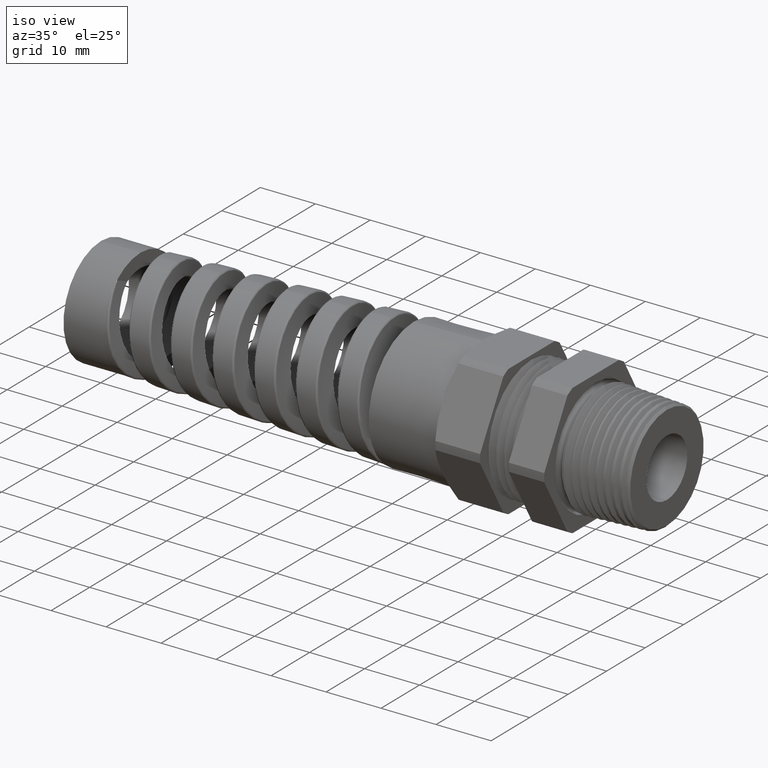
[diagram: clean part render]
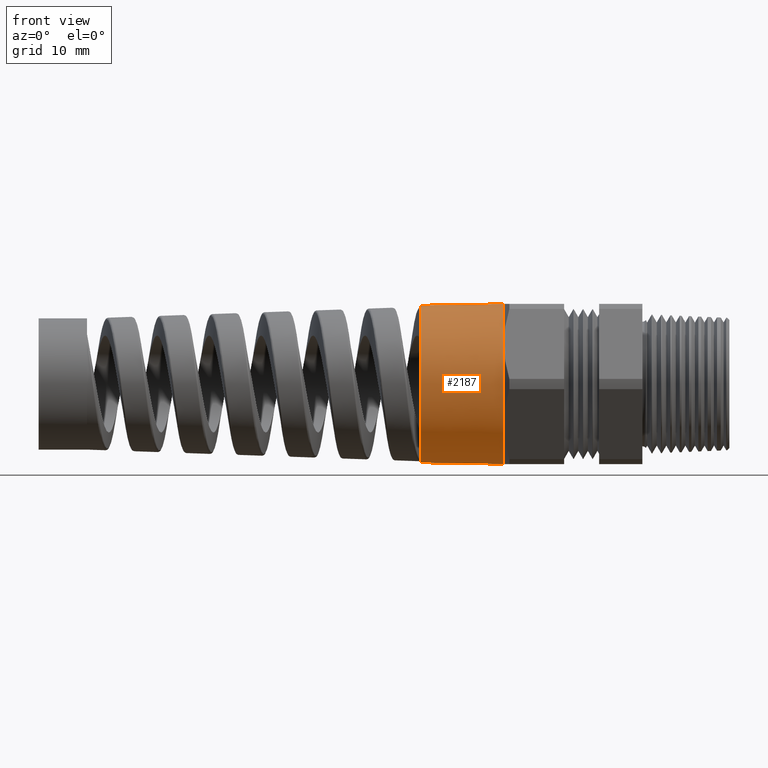
[diagram: tour spotlight — one face highlighted and labeled with its STEP entity id]
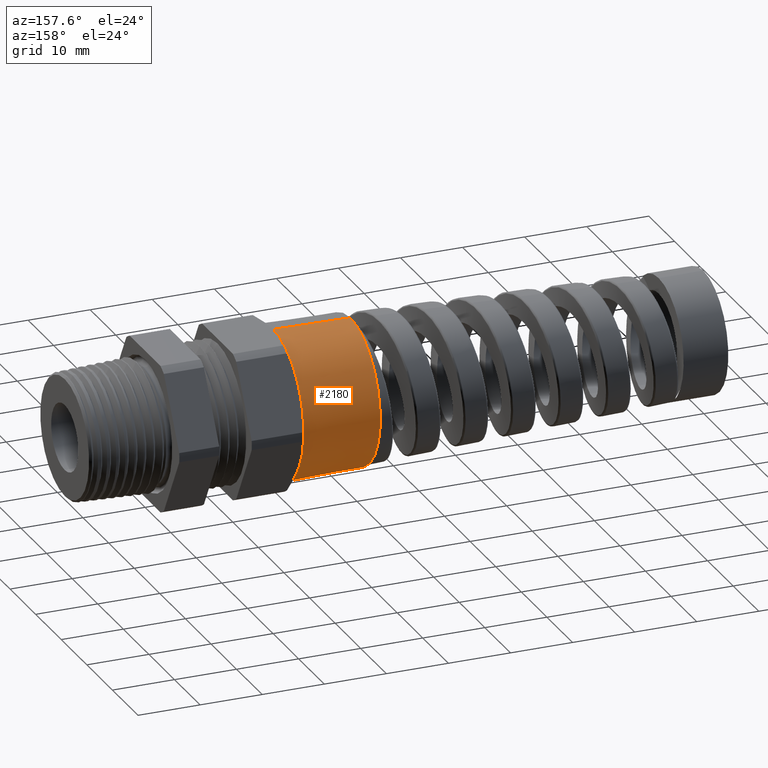
[diagram: tour spotlight — one face highlighted and labeled with its STEP entity id]
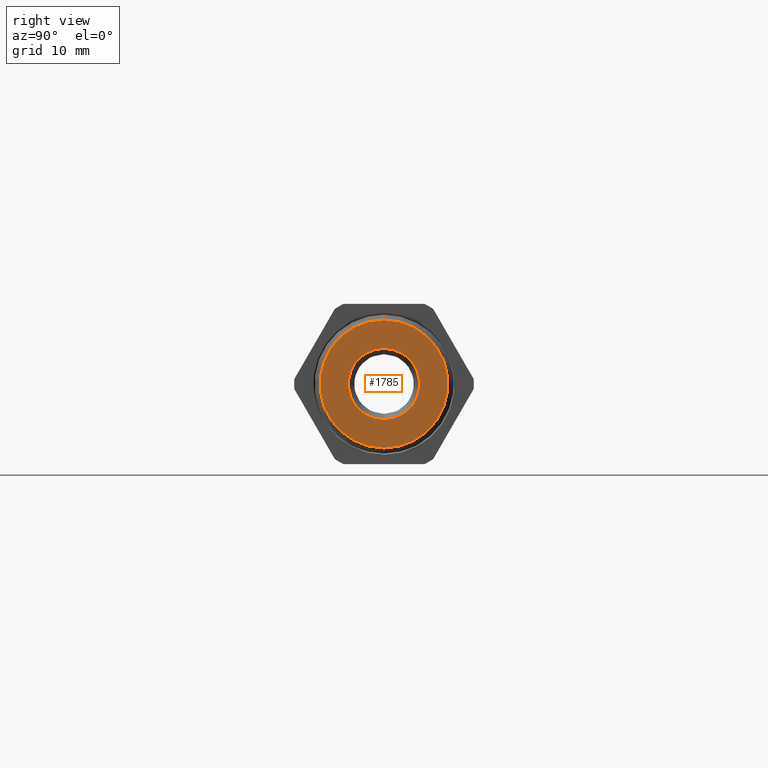
[diagram: tour spotlight — one face highlighted and labeled with its STEP entity id]
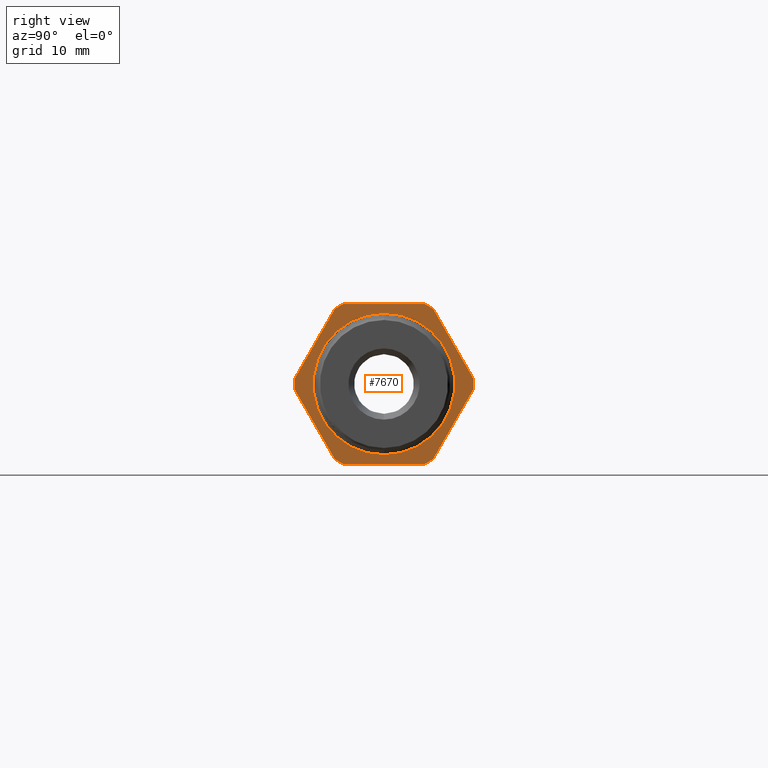
[diagram: tour spotlight — one face highlighted and labeled with its STEP entity id]
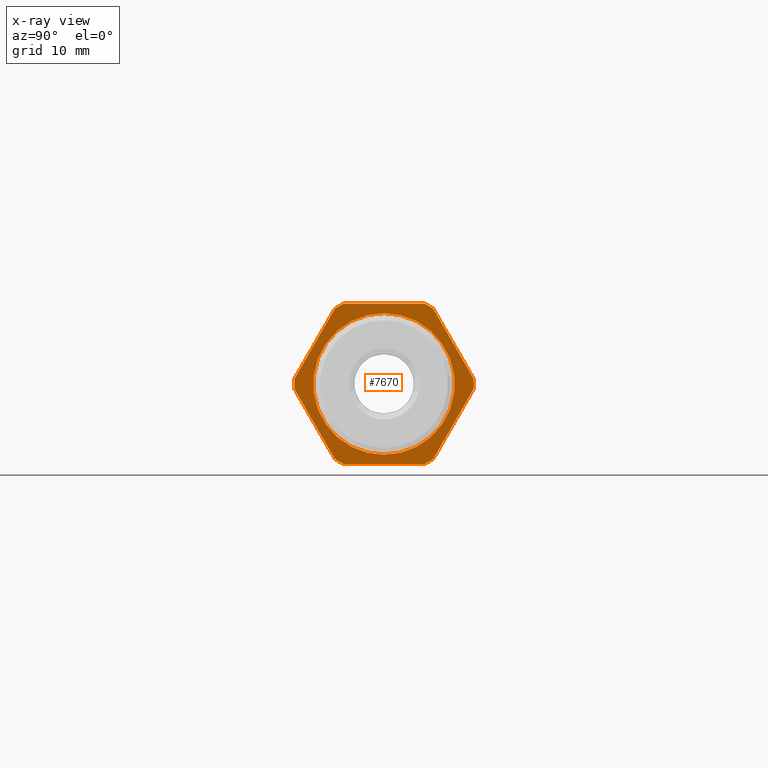
[diagram: x-ray of the same camera — body ghosted, this tour face saturated]
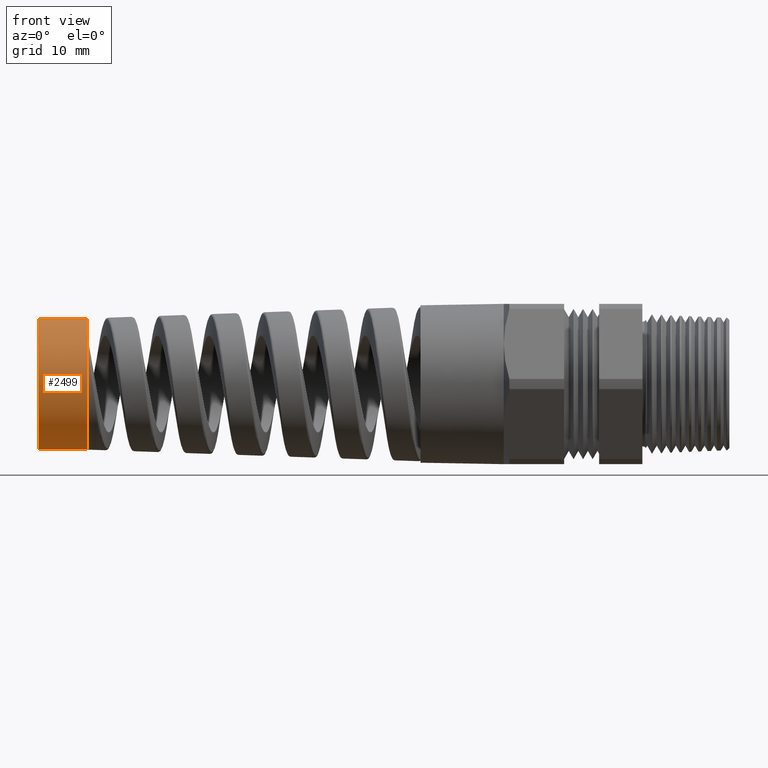
[diagram: tour spotlight — one face highlighted and labeled with its STEP entity id]
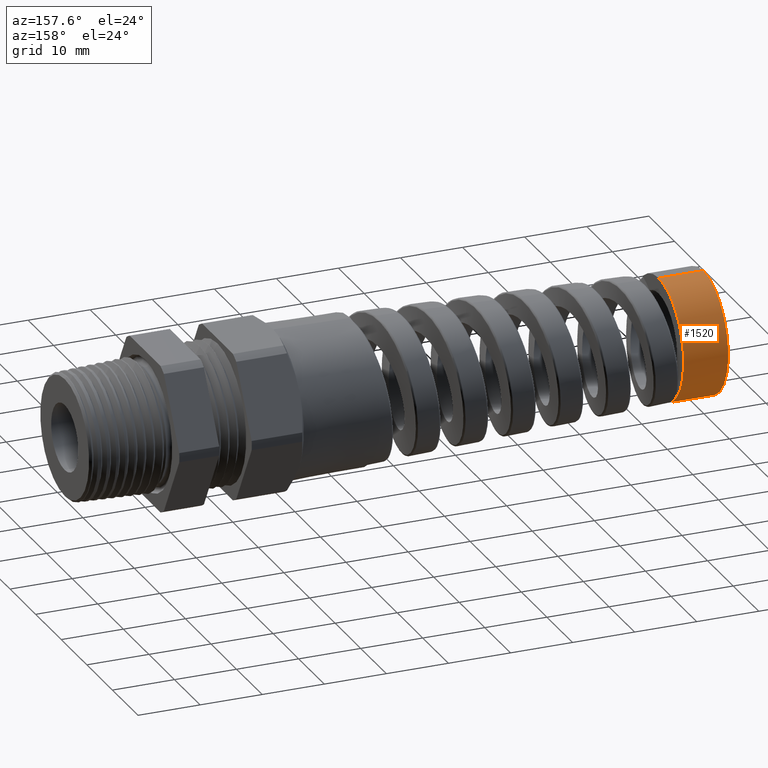
[diagram: tour spotlight — one face highlighted and labeled with its STEP entity id]
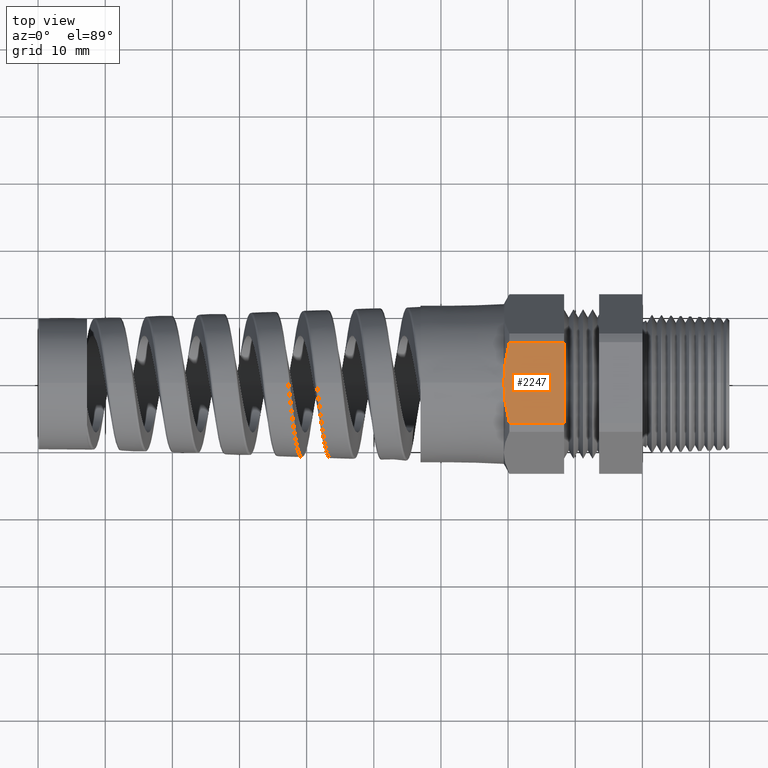
[diagram: tour spotlight — one face highlighted and labeled with its STEP entity id]
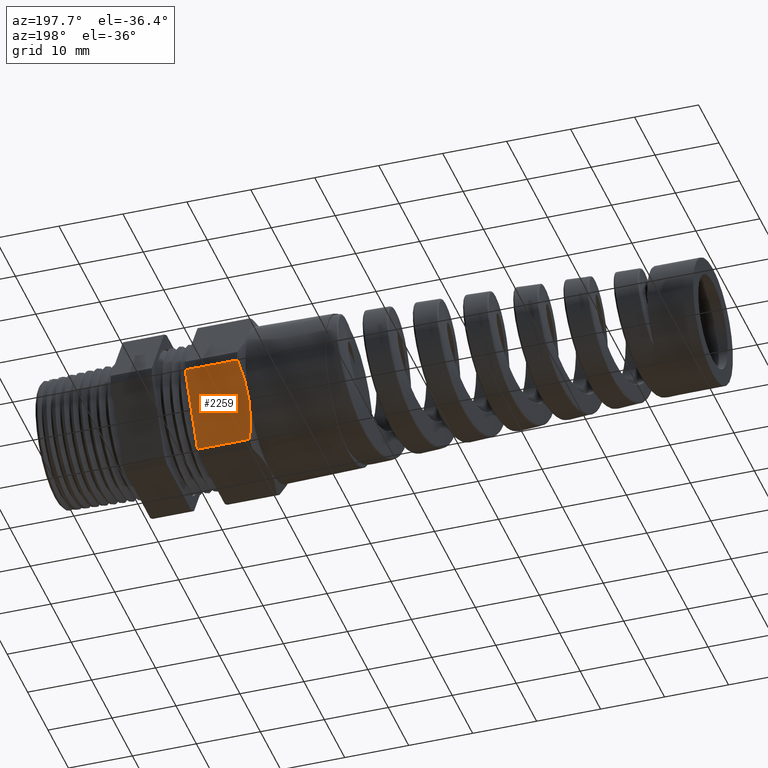
[diagram: tour spotlight — one face highlighted and labeled with its STEP entity id]
A machine part: a face-by-face anatomy tour. The part has 164 B-rep faces; the first image is the clean iso view, then the 8 largest visible faces are spotlighted one at a time (largest first), each with its STEP entity span.

Face 1 — front view, entity #2187. In plain terms, the highlighted conical surface has half-angle 1 deg.
Definition (entity closure, byte-faithful):
#968 = DIRECTION ( 'NONE',  ( 0.0000000000000000000, 0.0000000000000000000, 1.000000000000000000 ) ) ;
#1939 = VERTEX_POINT ( 'NONE', #9946 ) ;
#1942 = EDGE_CURVE ( 'NONE', #1961, #1939, #9941, .T. ) ;
#1943 = ORIENTED_EDGE ( 'NONE', *, *, #1942, .T. ) ;
#1961 = VERTEX_POINT ( 'NONE', #9928 ) ;
#1973 = ORIENTED_EDGE ( 'NONE', *, *, #1989, .T. ) ;
#1975 = VERTEX_POINT ( 'NONE', #9992 ) ;
#1989 = EDGE_CURVE ( 'NONE', #1975, #1961, #9984, .T. ) ;
#2127 = EDGE_CURVE ( 'NONE', #2198, #1975, #10019, .T. ) ;
#2131 = ORIENTED_EDGE ( 'NONE', *, *, #2127, .T. ) ;
#2178 = VERTEX_POINT ( 'NONE', #10227 ) ;
#2179 = ORIENTED_EDGE ( 'NONE', *, *, #2181, .F. ) ;
#2181 = EDGE_CURVE ( 'NONE', #2196, #2178, #10246, .T. ) ;
#2184 = EDGE_CURVE ( 'NONE', #1939, #2178, #10238, .T. ) ;
#2185 = EDGE_CURVE ( 'NONE', #2198, #2196, #10300, .T. ) ;
#2187 = ADVANCED_FACE ( 'NONE', ( #10293 ), #10292, .T. ) ;
#2194 = ORIENTED_EDGE ( 'NONE', *, *, #2185, .F. ) ;
#2195 = ORIENTED_EDGE ( 'NONE', *, *, #2184, .T. ) ;
#2196 = VERTEX_POINT ( 'NONE', #10264 ) ;
#2197 = EDGE_LOOP ( 'NONE', ( #2194, #2131, #1973, #1943, #2195, #2179 ) ) ;
#2198 = VERTEX_POINT ( 'NONE', #10263 ) ;
#9928 = CARTESIAN_POINT ( 'NONE',  ( -0.8125000000000001100, -0.4070319397786860100, -0.2350000000000000100 ) ) ;
#9937 = DIRECTION ( 'NONE',  ( 0.0000000000000000000, 0.0000000000000000000, 1.000000000000000000 ) ) ;
#9938 = DIRECTION ( 'NONE',  ( -1.000000000000000000, 0.0000000000000000000, 0.0000000000000000000 ) ) ;
#9939 = CARTESIAN_POINT ( 'NONE',  ( -0.8125000000000000000, 0.0000000000000000000, 0.0000000000000000000 ) ) ;
#9940 = AXIS2_PLACEMENT_3D ( 'NONE', #9939, #9938, #9937 ) ;
#9941 = CIRCLE ( 'NONE', #9940, 0.4699999999999997000 ) ;
#9946 = CARTESIAN_POINT ( 'NONE',  ( -0.8125000000000000000, -0.4070319397786860100, 0.2349999999999999600 ) ) ;
#9980 = DIRECTION ( 'NONE',  ( 0.0000000000000000000, 0.0000000000000000000, 1.000000000000000000 ) ) ;
#9981 = DIRECTION ( 'NONE',  ( -1.000000000000000000, 0.0000000000000000000, 0.0000000000000000000 ) ) ;
#9982 = CARTESIAN_POINT ( 'NONE',  ( -0.8125000000000000000, 0.0000000000000000000, 0.0000000000000000000 ) ) ;
#9983 = AXIS2_PLACEMENT_3D ( 'NONE', #9982, #9981, #9980 ) ;
#9984 = CIRCLE ( 'NONE', #9983, 0.4699999999999997000 ) ;
#9992 = CARTESIAN_POINT ( 'NONE',  ( -0.8125000000000000000, 0.0000000000000000000, -0.4699999999999999200 ) ) ;
#10012 = DIRECTION ( 'NONE',  ( 0.9998476951563912700, -2.137303368083796300E-018, -0.01745240643728355000 ) ) ;
#10013 = VECTOR ( 'NONE', #10012, 39.37007874015748100 ) ;
#10014 = CARTESIAN_POINT ( 'NONE',  ( -0.8125000000000000000, -5.755839955992557200E-017, -0.4699999999999997500 ) ) ;
#10019 = LINE ( 'NONE', #10014, #10013 ) ;
#10227 = CARTESIAN_POINT ( 'NONE',  ( -0.8125000000000001100, 0.0000000000000000000, 0.4699999999999997000 ) ) ;
#10236 = DIRECTION ( 'NONE',  ( -1.000000000000000000, 0.0000000000000000000, 0.0000000000000000000 ) ) ;
#10237 = AXIS2_PLACEMENT_3D ( 'NONE', #10241, #10236, #968 ) ;
#10238 = CIRCLE ( 'NONE', #10237, 0.4699999999999997000 ) ;
#10241 = CARTESIAN_POINT ( 'NONE',  ( -0.8125000000000000000, 0.0000000000000000000, 0.0000000000000000000 ) ) ;
#10243 = DIRECTION ( 'NONE',  ( 0.9998476951563912700, 0.0000000000000000000, 0.01745240643728355000 ) ) ;
#10244 = VECTOR ( 'NONE', #10243, 39.37007874015748100 ) ;
#10245 = CARTESIAN_POINT ( 'NONE',  ( -0.8125000000000000000, 0.0000000000000000000, 0.4699999999999997500 ) ) ;
#10246 = LINE ( 'NONE', #10245, #10244 ) ;
#10263 = CARTESIAN_POINT ( 'NONE',  ( -1.301020000000000100, -5.703626231520601100E-017, -0.4614728516812668400 ) ) ;
#10264 = CARTESIAN_POINT ( 'NONE',  ( -1.301020000000000100, 0.0000000000000000000, 0.4614728516812668400 ) ) ;
#10287 = DIRECTION ( 'NONE',  ( 0.0000000000000000000, 0.0000000000000000000, 1.000000000000000000 ) ) ;
#10288 = DIRECTION ( 'NONE',  ( 1.000000000000000000, 0.0000000000000000000, 0.0000000000000000000 ) ) ;
#10289 = CARTESIAN_POINT ( 'NONE',  ( -0.8125000000000000000, 0.0000000000000000000, 0.0000000000000000000 ) ) ;
#10290 = AXIS2_PLACEMENT_3D ( 'NONE', #10289, #10288, #10287 ) ;
#10292 = CONICAL_SURFACE ( 'NONE', #10290, 0.4699999999999997500, 0.01745329251994333400 ) ;
#10293 = FACE_OUTER_BOUND ( 'NONE', #2197, .T. ) ;
#10294 = DIRECTION ( 'NONE',  ( 0.0000000000000000000, 0.0000000000000000000, 1.000000000000000000 ) ) ;
#10295 = DIRECTION ( 'NONE',  ( -1.000000000000000000, 0.0000000000000000000, 0.0000000000000000000 ) ) ;
#10296 = CARTESIAN_POINT ( 'NONE',  ( -1.301020000000000100, 0.0000000000000000000, 0.0000000000000000000 ) ) ;
#10297 = AXIS2_PLACEMENT_3D ( 'NONE', #10296, #10295, #10294 ) ;
#10300 = CIRCLE ( 'NONE', #10297, 0.4614728516812668400 ) ;

Face 2 — auxiliary view, entity #2180. In plain terms, the highlighted conical surface has half-angle 1 deg.
Definition (entity closure, byte-faithful):
#430 = EDGE_CURVE ( 'NONE', #1031, #2243, #7956, .T. ) ;
#447 = EDGE_CURVE ( 'NONE', #2178, #1031, #7983, .T. ) ;
#1031 = VERTEX_POINT ( 'NONE', #8383 ) ;
#1949 = ORIENTED_EDGE ( 'NONE', *, *, #2136, .T. ) ;
#1950 = ORIENTED_EDGE ( 'NONE', *, *, #430, .T. ) ;
#1951 = ORIENTED_EDGE ( 'NONE', *, *, #447, .T. ) ;
#1952 = ORIENTED_EDGE ( 'NONE', *, *, #2181, .T. ) ;
#1953 = ORIENTED_EDGE ( 'NONE', *, *, #12428, .F. ) ;
#1955 = ORIENTED_EDGE ( 'NONE', *, *, #2127, .F. ) ;
#1957 = EDGE_LOOP ( 'NONE', ( #1955, #1953, #1952, #1951, #1950, #1949 ) ) ;
#1975 = VERTEX_POINT ( 'NONE', #9992 ) ;
#2127 = EDGE_CURVE ( 'NONE', #2198, #1975, #10019, .T. ) ;
#2136 = EDGE_CURVE ( 'NONE', #2243, #1975, #10097, .T. ) ;
#2178 = VERTEX_POINT ( 'NONE', #10227 ) ;
#2180 = ADVANCED_FACE ( 'NONE', ( #10252 ), #10250, .T. ) ;
#2181 = EDGE_CURVE ( 'NONE', #2196, #2178, #10246, .T. ) ;
#2196 = VERTEX_POINT ( 'NONE', #10264 ) ;
#2198 = VERTEX_POINT ( 'NONE', #10263 ) ;
#2243 = VERTEX_POINT ( 'NONE', #10599 ) ;
#6944 = DIRECTION ( 'NONE',  ( 0.0000000000000000000, 0.0000000000000000000, 1.000000000000000000 ) ) ;
#6945 = DIRECTION ( 'NONE',  ( -1.000000000000000000, 0.0000000000000000000, 0.0000000000000000000 ) ) ;
#6946 = CARTESIAN_POINT ( 'NONE',  ( -1.301020000000000100, 0.0000000000000000000, 0.0000000000000000000 ) ) ;
#6947 = AXIS2_PLACEMENT_3D ( 'NONE', #6946, #6945, #6944 ) ;
#6948 = CIRCLE ( 'NONE', #6947, 0.4614728516812668400 ) ;
#7953 = DIRECTION ( 'NONE',  ( 0.0000000000000000000, 0.0000000000000000000, 1.000000000000000000 ) ) ;
#7954 = DIRECTION ( 'NONE',  ( -1.000000000000000000, 0.0000000000000000000, 0.0000000000000000000 ) ) ;
#7955 = AXIS2_PLACEMENT_3D ( 'NONE', #7961, #7954, #7953 ) ;
#7956 = CIRCLE ( 'NONE', #7955, 0.4699999999999997000 ) ;
#7961 = CARTESIAN_POINT ( 'NONE',  ( -0.8125000000000000000, 0.0000000000000000000, 0.0000000000000000000 ) ) ;
#7980 = DIRECTION ( 'NONE',  ( 0.0000000000000000000, 0.0000000000000000000, 1.000000000000000000 ) ) ;
#7981 = DIRECTION ( 'NONE',  ( -1.000000000000000000, 0.0000000000000000000, 0.0000000000000000000 ) ) ;
#7982 = AXIS2_PLACEMENT_3D ( 'NONE', #7989, #7981, #7980 ) ;
#7983 = CIRCLE ( 'NONE', #7982, 0.4699999999999997000 ) ;
#7989 = CARTESIAN_POINT ( 'NONE',  ( -0.8125000000000000000, 0.0000000000000000000, 0.0000000000000000000 ) ) ;
#8383 = CARTESIAN_POINT ( 'NONE',  ( -0.8125000000000000000, 0.4070319397786859000, 0.2349999999999999600 ) ) ;
#9992 = CARTESIAN_POINT ( 'NONE',  ( -0.8125000000000000000, 0.0000000000000000000, -0.4699999999999999200 ) ) ;
#10012 = DIRECTION ( 'NONE',  ( 0.9998476951563912700, -2.137303368083796300E-018, -0.01745240643728355000 ) ) ;
#10013 = VECTOR ( 'NONE', #10012, 39.37007874015748100 ) ;
#10014 = CARTESIAN_POINT ( 'NONE',  ( -0.8125000000000000000, -5.755839955992557200E-017, -0.4699999999999997500 ) ) ;
#10019 = LINE ( 'NONE', #10014, #10013 ) ;
#10093 = DIRECTION ( 'NONE',  ( 0.0000000000000000000, 0.0000000000000000000, 1.000000000000000000 ) ) ;
#10094 = DIRECTION ( 'NONE',  ( -1.000000000000000000, 0.0000000000000000000, 0.0000000000000000000 ) ) ;
#10095 = CARTESIAN_POINT ( 'NONE',  ( -0.8125000000000000000, 0.0000000000000000000, 0.0000000000000000000 ) ) ;
#10096 = AXIS2_PLACEMENT_3D ( 'NONE', #10095, #10094, #10093 ) ;
#10097 = CIRCLE ( 'NONE', #10096, 0.4699999999999997000 ) ;
#10227 = CARTESIAN_POINT ( 'NONE',  ( -0.8125000000000001100, 0.0000000000000000000, 0.4699999999999997000 ) ) ;
#10243 = DIRECTION ( 'NONE',  ( 0.9998476951563912700, 0.0000000000000000000, 0.01745240643728355000 ) ) ;
#10244 = VECTOR ( 'NONE', #10243, 39.37007874015748100 ) ;
#10245 = CARTESIAN_POINT ( 'NONE',  ( -0.8125000000000000000, 0.0000000000000000000, 0.4699999999999997500 ) ) ;
#10246 = LINE ( 'NONE', #10245, #10244 ) ;
#10247 = DIRECTION ( 'NONE',  ( 0.0000000000000000000, 0.0000000000000000000, 1.000000000000000000 ) ) ;
#10248 = DIRECTION ( 'NONE',  ( 1.000000000000000000, 0.0000000000000000000, 0.0000000000000000000 ) ) ;
#10249 = AXIS2_PLACEMENT_3D ( 'NONE', #10251, #10248, #10247 ) ;
#10250 = CONICAL_SURFACE ( 'NONE', #10249, 0.4699999999999997500, 0.01745329251994333400 ) ;
#10251 = CARTESIAN_POINT ( 'NONE',  ( -0.8125000000000000000, 0.0000000000000000000, 0.0000000000000000000 ) ) ;
#10252 = FACE_OUTER_BOUND ( 'NONE', #1957, .T. ) ;
#10263 = CARTESIAN_POINT ( 'NONE',  ( -1.301020000000000100, -5.703626231520601100E-017, -0.4614728516812668400 ) ) ;
#10264 = CARTESIAN_POINT ( 'NONE',  ( -1.301020000000000100, 0.0000000000000000000, 0.4614728516812668400 ) ) ;
#10599 = CARTESIAN_POINT ( 'NONE',  ( -0.8125000000000000000, 0.4070319397786862400, -0.2350000000000001000 ) ) ;
#12428 = EDGE_CURVE ( 'NONE', #2196, #2198, #6948, .T. ) ;

Face 3 — right view, entity #1785. In plain terms, the highlighted planar face has unit normal (-1, 0, 0).
Definition (entity closure, byte-faithful):
#1253 = VERTEX_POINT ( 'NONE', #8768 ) ;
#1254 = VERTEX_POINT ( 'NONE', #8767 ) ;
#1300 = EDGE_CURVE ( 'NONE', #1253, #1254, #9074, .T. ) ;
#1544 = VERTEX_POINT ( 'NONE', #9458 ) ;
#1546 = VERTEX_POINT ( 'NONE', #9457 ) ;
#1547 = EDGE_CURVE ( 'NONE', #1544, #1546, #9491, .T. ) ;
#1767 = ORIENTED_EDGE ( 'NONE', *, *, #1300, .T. ) ;
#1769 = EDGE_CURVE ( 'NONE', #1254, #1253, #9714, .T. ) ;
#1776 = EDGE_LOOP ( 'NONE', ( #1767, #1777 ) ) ;
#1777 = ORIENTED_EDGE ( 'NONE', *, *, #1769, .T. ) ;
#1779 = ORIENTED_EDGE ( 'NONE', *, *, #1547, .T. ) ;
#1780 = EDGE_CURVE ( 'NONE', #1546, #1544, #9771, .T. ) ;
#1781 = ORIENTED_EDGE ( 'NONE', *, *, #1780, .T. ) ;
#1782 = EDGE_LOOP ( 'NONE', ( #1781, #1779 ) ) ;
#1785 = ADVANCED_FACE ( 'NONE', ( #9761, #9760 ), #9759, .F. ) ;
#8767 = CARTESIAN_POINT ( 'NONE',  ( 0.5100000000000000100, 2.557601921680126100E-017, 0.2088440457657528600 ) ) ;
#8768 = CARTESIAN_POINT ( 'NONE',  ( 0.5100000000000000100, 0.0000000000000000000, -0.2088440457657528600 ) ) ;
#9070 = DIRECTION ( 'NONE',  ( 0.0000000000000000000, 0.0000000000000000000, 1.000000000000000000 ) ) ;
#9071 = DIRECTION ( 'NONE',  ( -1.000000000000000000, 0.0000000000000000000, 0.0000000000000000000 ) ) ;
#9072 = CARTESIAN_POINT ( 'NONE',  ( 0.5100000000000000100, 0.0000000000000000000, 0.0000000000000000000 ) ) ;
#9073 = AXIS2_PLACEMENT_3D ( 'NONE', #9072, #9071, #9070 ) ;
#9074 = CIRCLE ( 'NONE', #9073, 0.2088440457657528600 ) ;
#9457 = CARTESIAN_POINT ( 'NONE',  ( 0.5100000000000000100, 0.0000000000000000000, 0.3752329191166588500 ) ) ;
#9458 = CARTESIAN_POINT ( 'NONE',  ( 0.5100000000000000100, 4.675312753992592000E-017, -0.3752329191166588500 ) ) ;
#9487 = DIRECTION ( 'NONE',  ( 0.0000000000000000000, 0.0000000000000000000, 1.000000000000000000 ) ) ;
#9488 = DIRECTION ( 'NONE',  ( 1.000000000000000000, 0.0000000000000000000, 0.0000000000000000000 ) ) ;
#9489 = CARTESIAN_POINT ( 'NONE',  ( 0.5100000000000000100, 0.0000000000000000000, 0.0000000000000000000 ) ) ;
#9490 = AXIS2_PLACEMENT_3D ( 'NONE', #9489, #9488, #9487 ) ;
#9491 = CIRCLE ( 'NONE', #9490, 0.3752329191166588500 ) ;
#9713 = AXIS2_PLACEMENT_3D ( 'NONE', #9777, #9776, #9775 ) ;
#9714 = CIRCLE ( 'NONE', #9713, 0.2088440457657528600 ) ;
#9755 = DIRECTION ( 'NONE',  ( 0.0000000000000000000, 0.0000000000000000000, 1.000000000000000000 ) ) ;
#9756 = DIRECTION ( 'NONE',  ( -1.000000000000000000, 0.0000000000000000000, 0.0000000000000000000 ) ) ;
#9757 = CARTESIAN_POINT ( 'NONE',  ( 0.5100000000000000100, 0.3877329191166588000, 0.0000000000000000000 ) ) ;
#9758 = AXIS2_PLACEMENT_3D ( 'NONE', #9757, #9756, #9755 ) ;
#9759 = PLANE ( 'NONE',  #9758 ) ;
#9760 = FACE_BOUND ( 'NONE', #1776, .T. ) ;
#9761 = FACE_OUTER_BOUND ( 'NONE', #1782, .T. ) ;
#9767 = DIRECTION ( 'NONE',  ( 0.0000000000000000000, 0.0000000000000000000, 1.000000000000000000 ) ) ;
#9768 = DIRECTION ( 'NONE',  ( 1.000000000000000000, 0.0000000000000000000, 0.0000000000000000000 ) ) ;
#9769 = CARTESIAN_POINT ( 'NONE',  ( 0.5100000000000000100, 0.0000000000000000000, 0.0000000000000000000 ) ) ;
#9770 = AXIS2_PLACEMENT_3D ( 'NONE', #9769, #9768, #9767 ) ;
#9771 = CIRCLE ( 'NONE', #9770, 0.3752329191166588500 ) ;
#9775 = DIRECTION ( 'NONE',  ( 0.0000000000000000000, 0.0000000000000000000, 1.000000000000000000 ) ) ;
#9776 = DIRECTION ( 'NONE',  ( -1.000000000000000000, 0.0000000000000000000, 0.0000000000000000000 ) ) ;
#9777 = CARTESIAN_POINT ( 'NONE',  ( 0.5100000000000000100, 0.0000000000000000000, 0.0000000000000000000 ) ) ;

Face 4 — right view, entity #7670. An x-ray twin of the same camera follows (body ghosted, this face saturated) — the face is partly hidden behind the body. In plain terms, the highlighted planar face has unit normal (-1, 0, 0).
Definition (entity closure, byte-faithful):
#2202 = VERTEX_POINT ( 'NONE', #10396 ) ;
#2206 = EDGE_CURVE ( 'NONE', #2209, #2202, #10438, .T. ) ;
#2209 = VERTEX_POINT ( 'NONE', #10518 ) ;
#6137 = PLANE ( 'NONE',  #6208 ) ;
#6138 = FACE_BOUND ( 'NONE', #7735, .T. ) ;
#6139 = FACE_OUTER_BOUND ( 'NONE', #7672, .T. ) ;
#6148 = CARTESIAN_POINT ( 'NONE',  ( 0.0000000000000000000, 0.2885024497772522000, 0.4402990988777105700 ) ) ;
#6149 = DIRECTION ( 'NONE',  ( 0.0000000000000000000, -0.5000000000000001100, 0.8660254037844386000 ) ) ;
#6150 = VECTOR ( 'NONE', #6149, 39.37007874015748100 ) ;
#6151 = CARTESIAN_POINT ( 'NONE',  ( 0.0000000000000000000, 0.5255614297801198800, 0.02970090112228930500 ) ) ;
#6152 = LINE ( 'NONE', #6151, #6150 ) ;
#6193 = CARTESIAN_POINT ( 'NONE',  ( 0.0000000000000000000, -0.2370589800028678500, -0.4699999999999997500 ) ) ;
#6194 = DIRECTION ( 'NONE',  ( 0.0000000000000000000, 0.0000000000000000000, 1.000000000000000000 ) ) ;
#6195 = DIRECTION ( 'NONE',  ( -1.000000000000000000, 0.0000000000000000000, 0.0000000000000000000 ) ) ;
#6196 = CARTESIAN_POINT ( 'NONE',  ( 0.0000000000000000000, 0.0000000000000000000, 0.0000000000000000000 ) ) ;
#6197 = AXIS2_PLACEMENT_3D ( 'NONE', #6196, #6195, #6194 ) ;
#6198 = CIRCLE ( 'NONE', #6197, 0.5263999999999999800 ) ;
#6199 = CARTESIAN_POINT ( 'NONE',  ( 0.0000000000000000000, -0.2885024497772522600, -0.4402990988777105700 ) ) ;
#6200 = CARTESIAN_POINT ( 'NONE',  ( 0.0000000000000000000, -0.5255614297801198800, -0.02970090112228941000 ) ) ;
#6201 = DIRECTION ( 'NONE',  ( 0.0000000000000000000, 0.5000000000000001100, -0.8660254037844386000 ) ) ;
#6202 = VECTOR ( 'NONE', #6201, 39.37007874015748100 ) ;
#6203 = CARTESIAN_POINT ( 'NONE',  ( 0.0000000000000000000, -0.5255614297801198800, -0.02970090112228941000 ) ) ;
#6204 = LINE ( 'NONE', #6203, #6202 ) ;
#6205 = DIRECTION ( 'NONE',  ( 0.0000000000000000000, 0.0000000000000000000, 1.000000000000000000 ) ) ;
#6206 = DIRECTION ( 'NONE',  ( -1.000000000000000000, 0.0000000000000000000, 0.0000000000000000000 ) ) ;
#6207 = CARTESIAN_POINT ( 'NONE',  ( 0.0000000000000000000, 0.5263999999999999800, 0.0000000000000000000 ) ) ;
#6208 = AXIS2_PLACEMENT_3D ( 'NONE', #6207, #6206, #6205 ) ;
#6236 = LINE ( 'NONE', #6300, #6299 ) ;
#6237 = CARTESIAN_POINT ( 'NONE',  ( 0.0000000000000000000, 0.2370589800028677600, 0.4699999999999998600 ) ) ;
#6238 = DIRECTION ( 'NONE',  ( 0.0000000000000000000, 0.0000000000000000000, 1.000000000000000000 ) ) ;
#6239 = DIRECTION ( 'NONE',  ( -1.000000000000000000, 0.0000000000000000000, 0.0000000000000000000 ) ) ;
#6240 = CARTESIAN_POINT ( 'NONE',  ( 0.0000000000000000000, 0.0000000000000000000, 0.0000000000000000000 ) ) ;
#6241 = AXIS2_PLACEMENT_3D ( 'NONE', #6240, #6239, #6238 ) ;
#6246 = CIRCLE ( 'NONE', #6241, 0.5263999999999999800 ) ;
#6260 = DIRECTION ( 'NONE',  ( 0.0000000000000000000, 0.0000000000000000000, 1.000000000000000000 ) ) ;
#6261 = DIRECTION ( 'NONE',  ( 1.000000000000000000, 0.0000000000000000000, 0.0000000000000000000 ) ) ;
#6262 = CARTESIAN_POINT ( 'NONE',  ( 0.0000000000000000000, 0.0000000000000000000, 0.0000000000000000000 ) ) ;
#6263 = AXIS2_PLACEMENT_3D ( 'NONE', #6262, #6261, #6260 ) ;
#6264 = CIRCLE ( 'NONE', #6263, 0.4149999999999998100 ) ;
#6270 = DIRECTION ( 'NONE',  ( 0.0000000000000000000, 0.0000000000000000000, 1.000000000000000000 ) ) ;
#6271 = DIRECTION ( 'NONE',  ( -1.000000000000000000, 0.0000000000000000000, 0.0000000000000000000 ) ) ;
#6272 = CARTESIAN_POINT ( 'NONE',  ( 0.0000000000000000000, 0.0000000000000000000, 0.0000000000000000000 ) ) ;
#6273 = AXIS2_PLACEMENT_3D ( 'NONE', #6272, #6271, #6270 ) ;
#6274 = CIRCLE ( 'NONE', #6273, 0.5263999999999999800 ) ;
#6275 = CARTESIAN_POINT ( 'NONE',  ( 0.0000000000000000000, 0.2885024497772524200, -0.4402990988777104000 ) ) ;
#6276 = CARTESIAN_POINT ( 'NONE',  ( 0.0000000000000000000, 0.2370589800028677400, -0.4699999999999999200 ) ) ;
#6277 = DIRECTION ( 'NONE',  ( 0.0000000000000000000, 1.000000000000000000, 0.0000000000000000000 ) ) ;
#6278 = VECTOR ( 'NONE', #6277, 39.37007874015748100 ) ;
#6279 = CARTESIAN_POINT ( 'NONE',  ( 0.0000000000000000000, -0.2370589800028677400, -0.4699999999999999200 ) ) ;
#6280 = LINE ( 'NONE', #6279, #6278 ) ;
#6281 = DIRECTION ( 'NONE',  ( 0.0000000000000000000, 0.0000000000000000000, 1.000000000000000000 ) ) ;
#6282 = DIRECTION ( 'NONE',  ( -1.000000000000000000, 0.0000000000000000000, 0.0000000000000000000 ) ) ;
#6283 = CARTESIAN_POINT ( 'NONE',  ( 0.0000000000000000000, 0.0000000000000000000, 0.0000000000000000000 ) ) ;
#6284 = AXIS2_PLACEMENT_3D ( 'NONE', #6283, #6282, #6281 ) ;
#6285 = CIRCLE ( 'NONE', #6284, 0.5263999999999999800 ) ;
#6286 = CARTESIAN_POINT ( 'NONE',  ( 0.0000000000000000000, -0.5255614297801199900, 0.02970090112228907300 ) ) ;
#6287 = DIRECTION ( 'NONE',  ( 0.0000000000000000000, -0.5000000000000000000, -0.8660254037844386000 ) ) ;
#6288 = VECTOR ( 'NONE', #6287, 39.37007874015748900 ) ;
#6289 = CARTESIAN_POINT ( 'NONE',  ( 0.0000000000000000000, -0.2885024497772518700, 0.4402990988777108500 ) ) ;
#6290 = LINE ( 'NONE', #6289, #6288 ) ;
#6291 = CARTESIAN_POINT ( 'NONE',  ( 0.0000000000000000000, -0.2885024497772517000, 0.4402990988777108500 ) ) ;
#6292 = DIRECTION ( 'NONE',  ( 0.0000000000000000000, 0.0000000000000000000, 1.000000000000000000 ) ) ;
#6293 = DIRECTION ( 'NONE',  ( -1.000000000000000000, 0.0000000000000000000, 0.0000000000000000000 ) ) ;
#6294 = CARTESIAN_POINT ( 'NONE',  ( 0.0000000000000000000, 0.0000000000000000000, 0.0000000000000000000 ) ) ;
#6295 = AXIS2_PLACEMENT_3D ( 'NONE', #6294, #6293, #6292 ) ;
#6296 = CIRCLE ( 'NONE', #6295, 0.5263999999999999800 ) ;
#6297 = CARTESIAN_POINT ( 'NONE',  ( 0.0000000000000000000, -0.2370589800028677400, 0.4699999999999999200 ) ) ;
#6298 = DIRECTION ( 'NONE',  ( 0.0000000000000000000, -1.000000000000000000, 0.0000000000000000000 ) ) ;
#6299 = VECTOR ( 'NONE', #6298, 39.37007874015748100 ) ;
#6300 = CARTESIAN_POINT ( 'NONE',  ( 0.0000000000000000000, 0.2370589800028677400, 0.4699999999999999200 ) ) ;
#6323 = CARTESIAN_POINT ( 'NONE',  ( 0.0000000000000000000, 0.5255614297801198800, 0.02970090112228932300 ) ) ;
#6324 = DIRECTION ( 'NONE',  ( 0.0000000000000000000, 0.0000000000000000000, 1.000000000000000000 ) ) ;
#6325 = DIRECTION ( 'NONE',  ( -1.000000000000000000, 0.0000000000000000000, 0.0000000000000000000 ) ) ;
#6326 = CARTESIAN_POINT ( 'NONE',  ( 0.0000000000000000000, 0.0000000000000000000, 0.0000000000000000000 ) ) ;
#6327 = AXIS2_PLACEMENT_3D ( 'NONE', #6326, #6325, #6324 ) ;
#6328 = CIRCLE ( 'NONE', #6327, 0.5263999999999999800 ) ;
#6329 = CARTESIAN_POINT ( 'NONE',  ( 0.0000000000000000000, 0.5255614297801198800, -0.02970090112228958000 ) ) ;
#6330 = DIRECTION ( 'NONE',  ( 0.0000000000000000000, 0.5000000000000000000, 0.8660254037844386000 ) ) ;
#6331 = VECTOR ( 'NONE', #6330, 39.37007874015748900 ) ;
#6332 = CARTESIAN_POINT ( 'NONE',  ( 0.0000000000000000000, 0.2885024497772524200, -0.4402990988777104600 ) ) ;
#6333 = LINE ( 'NONE', #6332, #6331 ) ;
#7663 = EDGE_CURVE ( 'NONE', #7747, #7664, #6152, .T. ) ;
#7664 = VERTEX_POINT ( 'NONE', #6148 ) ;
#7665 = ORIENTED_EDGE ( 'NONE', *, *, #7721, .F. ) ;
#7670 = ADVANCED_FACE ( 'NONE', ( #6139, #6138 ), #6137, .F. ) ;
#7672 = EDGE_LOOP ( 'NONE', ( #7673, #7677, #7680, #7739, #7742, #7745, #7748, #7665, #7723, #7726, #7729, #7732 ) ) ;
#7673 = ORIENTED_EDGE ( 'NONE', *, *, #7674, .T. ) ;
#7674 = EDGE_CURVE ( 'NONE', #7675, #7676, #6204, .T. ) ;
#7675 = VERTEX_POINT ( 'NONE', #6200 ) ;
#7676 = VERTEX_POINT ( 'NONE', #6199 ) ;
#7677 = ORIENTED_EDGE ( 'NONE', *, *, #7678, .F. ) ;
#7678 = EDGE_CURVE ( 'NONE', #7679, #7676, #6198, .T. ) ;
#7679 = VERTEX_POINT ( 'NONE', #6193 ) ;
#7680 = ORIENTED_EDGE ( 'NONE', *, *, #7737, .T. ) ;
#7709 = EDGE_CURVE ( 'NONE', #2202, #2209, #6264, .T. ) ;
#7710 = ORIENTED_EDGE ( 'NONE', *, *, #2206, .F. ) ;
#7721 = EDGE_CURVE ( 'NONE', #7722, #7664, #6246, .T. ) ;
#7722 = VERTEX_POINT ( 'NONE', #6237 ) ;
#7723 = ORIENTED_EDGE ( 'NONE', *, *, #7724, .T. ) ;
#7724 = EDGE_CURVE ( 'NONE', #7722, #7725, #6236, .T. ) ;
#7725 = VERTEX_POINT ( 'NONE', #6297 ) ;
#7726 = ORIENTED_EDGE ( 'NONE', *, *, #7727, .F. ) ;
#7727 = EDGE_CURVE ( 'NONE', #7728, #7725, #6296, .T. ) ;
#7728 = VERTEX_POINT ( 'NONE', #6291 ) ;
#7729 = ORIENTED_EDGE ( 'NONE', *, *, #7730, .T. ) ;
#7730 = EDGE_CURVE ( 'NONE', #7728, #7731, #6290, .T. ) ;
#7731 = VERTEX_POINT ( 'NONE', #6286 ) ;
#7732 = ORIENTED_EDGE ( 'NONE', *, *, #7733, .F. ) ;
#7733 = EDGE_CURVE ( 'NONE', #7675, #7731, #6285, .T. ) ;
#7735 = EDGE_LOOP ( 'NONE', ( #7736, #7710 ) ) ;
#7736 = ORIENTED_EDGE ( 'NONE', *, *, #7709, .F. ) ;
#7737 = EDGE_CURVE ( 'NONE', #7679, #7738, #6280, .T. ) ;
#7738 = VERTEX_POINT ( 'NONE', #6276 ) ;
#7739 = ORIENTED_EDGE ( 'NONE', *, *, #7740, .F. ) ;
#7740 = EDGE_CURVE ( 'NONE', #7741, #7738, #6274, .T. ) ;
#7741 = VERTEX_POINT ( 'NONE', #6275 ) ;
#7742 = ORIENTED_EDGE ( 'NONE', *, *, #7743, .T. ) ;
#7743 = EDGE_CURVE ( 'NONE', #7741, #7744, #6333, .T. ) ;
#7744 = VERTEX_POINT ( 'NONE', #6329 ) ;
#7745 = ORIENTED_EDGE ( 'NONE', *, *, #7746, .F. ) ;
#7746 = EDGE_CURVE ( 'NONE', #7747, #7744, #6328, .T. ) ;
#7747 = VERTEX_POINT ( 'NONE', #6323 ) ;
#7748 = ORIENTED_EDGE ( 'NONE', *, *, #7663, .T. ) ;
#10393 = CARTESIAN_POINT ( 'NONE',  ( 0.0000000000000000000, 0.0000000000000000000, 0.0000000000000000000 ) ) ;
#10396 = CARTESIAN_POINT ( 'NONE',  ( 0.0000000000000000000, 0.0000000000000000000, -0.4149999999999998100 ) ) ;
#10435 = DIRECTION ( 'NONE',  ( 0.0000000000000000000, 0.0000000000000000000, 1.000000000000000000 ) ) ;
#10436 = DIRECTION ( 'NONE',  ( 1.000000000000000000, 0.0000000000000000000, 0.0000000000000000000 ) ) ;
#10437 = AXIS2_PLACEMENT_3D ( 'NONE', #10393, #10436, #10435 ) ;
#10438 = CIRCLE ( 'NONE', #10437, 0.4149999999999998100 ) ;
#10518 = CARTESIAN_POINT ( 'NONE',  ( 0.0000000000000000000, 5.082284216461513200E-017, 0.4149999999999998100 ) ) ;

Face 5 — front view, entity #2499. In plain terms, the highlighted cylindrical surface (partial cylindrical patch) has radius 9.7693 mm, axis along (1, 0, 0).
Definition (entity closure, byte-faithful):
#1492 = VERTEX_POINT ( 'NONE', #9328 ) ;
#1496 = VERTEX_POINT ( 'NONE', #9327 ) ;
#1498 = EDGE_CURVE ( 'NONE', #1517, #1496, #9326, .T. ) ;
#1512 = EDGE_CURVE ( 'NONE', #1492, #1513, #9364, .T. ) ;
#1513 = VERTEX_POINT ( 'NONE', #9360 ) ;
#1517 = VERTEX_POINT ( 'NONE', #9358 ) ;
#2485 = EDGE_CURVE ( 'NONE', #7426, #1496, #11775, .T. ) ;
#2497 = ORIENTED_EDGE ( 'NONE', *, *, #1498, .F. ) ;
#2499 = ADVANCED_FACE ( 'NONE', ( #11810 ), #11809, .T. ) ;
#2501 = EDGE_LOOP ( 'NONE', ( #2497, #2541, #2540, #2529, #2533 ) ) ;
#2505 = EDGE_CURVE ( 'NONE', #1492, #1517, #11859, .T. ) ;
#2529 = ORIENTED_EDGE ( 'NONE', *, *, #7443, .F. ) ;
#2533 = ORIENTED_EDGE ( 'NONE', *, *, #2485, .T. ) ;
#2540 = ORIENTED_EDGE ( 'NONE', *, *, #1512, .T. ) ;
#2541 = ORIENTED_EDGE ( 'NONE', *, *, #2505, .F. ) ;
#5664 = CARTESIAN_POINT ( 'NONE',  ( -3.256800000000000100, -0.2988133339120769300, 0.2421588570577778400 ) ) ;
#5691 = DIRECTION ( 'NONE',  ( 0.0000000000000000000, 0.0000000000000000000, -1.000000000000000000 ) ) ;
#5692 = DIRECTION ( 'NONE',  ( 1.000000000000000000, 0.0000000000000000000, 0.0000000000000000000 ) ) ;
#5693 = CARTESIAN_POINT ( 'NONE',  ( -3.256800000000000100, 0.0000000000000000000, 0.0000000000000000000 ) ) ;
#5694 = AXIS2_PLACEMENT_3D ( 'NONE', #5693, #5692, #5691 ) ;
#5695 = CIRCLE ( 'NONE', #5694, 0.3846171090515572200 ) ;
#7426 = VERTEX_POINT ( 'NONE', #5664 ) ;
#7443 = EDGE_CURVE ( 'NONE', #7426, #1513, #5695, .T. ) ;
#9318 = DIRECTION ( 'NONE',  ( 1.000000000000000000, 0.0000000000000000000, 0.0000000000000000000 ) ) ;
#9319 = VECTOR ( 'NONE', #9318, 39.37007874015748100 ) ;
#9320 = CARTESIAN_POINT ( 'NONE',  ( -3.540000000000000000, 4.710201114973015700E-017, 0.3846171090515601000 ) ) ;
#9326 = LINE ( 'NONE', #9320, #9319 ) ;
#9327 = CARTESIAN_POINT ( 'NONE',  ( -3.256800000000000100, 4.710201114973015700E-017, 0.3846171090515601000 ) ) ;
#9328 = CARTESIAN_POINT ( 'NONE',  ( -3.540000000000000000, 0.0000000000000000000, -0.3846171090515601000 ) ) ;
#9358 = CARTESIAN_POINT ( 'NONE',  ( -3.540000000000000000, 4.710201114973015700E-017, 0.3846171090515601000 ) ) ;
#9360 = CARTESIAN_POINT ( 'NONE',  ( -3.256800000000000100, 0.0000000000000000000, -0.3846171090515572200 ) ) ;
#9361 = DIRECTION ( 'NONE',  ( 1.000000000000000000, 0.0000000000000000000, 0.0000000000000000000 ) ) ;
#9362 = VECTOR ( 'NONE', #9361, 39.37007874015748100 ) ;
#9363 = CARTESIAN_POINT ( 'NONE',  ( -3.540000000000000000, 0.0000000000000000000, -0.3846171090515601000 ) ) ;
#9364 = LINE ( 'NONE', #9363, #9362 ) ;
#11775 = CIRCLE ( 'NONE', #11843, 0.3846171090515601000 ) ;
#11809 = CYLINDRICAL_SURFACE ( 'NONE', #11874, 0.3846171090515601000 ) ;
#11810 = FACE_OUTER_BOUND ( 'NONE', #2501, .T. ) ;
#11840 = DIRECTION ( 'NONE',  ( 0.0000000000000000000, 0.0000000000000000000, 1.000000000000000000 ) ) ;
#11841 = DIRECTION ( 'NONE',  ( -1.000000000000000000, 0.0000000000000000000, 0.0000000000000000000 ) ) ;
#11842 = CARTESIAN_POINT ( 'NONE',  ( -3.256800000000000100, 0.0000000000000000000, 0.0000000000000000000 ) ) ;
#11843 = AXIS2_PLACEMENT_3D ( 'NONE', #11842, #11841, #11840 ) ;
#11855 = DIRECTION ( 'NONE',  ( 0.0000000000000000000, 0.0000000000000000000, 1.000000000000000000 ) ) ;
#11856 = DIRECTION ( 'NONE',  ( -1.000000000000000000, 0.0000000000000000000, 0.0000000000000000000 ) ) ;
#11857 = CARTESIAN_POINT ( 'NONE',  ( -3.540000000000000000, 0.0000000000000000000, 0.0000000000000000000 ) ) ;
#11858 = AXIS2_PLACEMENT_3D ( 'NONE', #11857, #11856, #11855 ) ;
#11859 = CIRCLE ( 'NONE', #11858, 0.3846171090515601000 ) ;
#11871 = DIRECTION ( 'NONE',  ( 0.0000000000000000000, 0.0000000000000000000, -1.000000000000000000 ) ) ;
#11872 = DIRECTION ( 'NONE',  ( 1.000000000000000000, 0.0000000000000000000, 0.0000000000000000000 ) ) ;
#11873 = CARTESIAN_POINT ( 'NONE',  ( -3.540000000000000000, 0.0000000000000000000, 0.0000000000000000000 ) ) ;
#11874 = AXIS2_PLACEMENT_3D ( 'NONE', #11873, #11872, #11871 ) ;

Face 6 — auxiliary view, entity #1520. In plain terms, the highlighted cylindrical surface (partial cylindrical patch) has radius 9.7693 mm, axis along (1, 0, 0).
Definition (entity closure, byte-faithful):
#1301 = VERTEX_POINT ( 'NONE', #9069 ) ;
#1465 = ORIENTED_EDGE ( 'NONE', *, *, #1511, .F. ) ;
#1485 = ORIENTED_EDGE ( 'NONE', *, *, #1498, .T. ) ;
#1491 = EDGE_CURVE ( 'NONE', #1517, #1492, #9332, .T. ) ;
#1492 = VERTEX_POINT ( 'NONE', #9328 ) ;
#1493 = ORIENTED_EDGE ( 'NONE', *, *, #1491, .F. ) ;
#1494 = ORIENTED_EDGE ( 'NONE', *, *, #1497, .T. ) ;
#1496 = VERTEX_POINT ( 'NONE', #9327 ) ;
#1497 = EDGE_CURVE ( 'NONE', #1496, #1301, #9325, .T. ) ;
#1498 = EDGE_CURVE ( 'NONE', #1517, #1496, #9326, .T. ) ;
#1507 = ORIENTED_EDGE ( 'NONE', *, *, #1512, .F. ) ;
#1511 = EDGE_CURVE ( 'NONE', #1513, #1301, #9369, .T. ) ;
#1512 = EDGE_CURVE ( 'NONE', #1492, #1513, #9364, .T. ) ;
#1513 = VERTEX_POINT ( 'NONE', #9360 ) ;
#1515 = EDGE_LOOP ( 'NONE', ( #1493, #1485, #1494, #1465, #1507 ) ) ;
#1517 = VERTEX_POINT ( 'NONE', #9358 ) ;
#1520 = ADVANCED_FACE ( 'NONE', ( #9352 ), #9351, .T. ) ;
#9069 = CARTESIAN_POINT ( 'NONE',  ( -3.256800000000000100, 0.2125528961349580900, -0.3205488838224510000 ) ) ;
#9318 = DIRECTION ( 'NONE',  ( 1.000000000000000000, 0.0000000000000000000, 0.0000000000000000000 ) ) ;
#9319 = VECTOR ( 'NONE', #9318, 39.37007874015748100 ) ;
#9320 = CARTESIAN_POINT ( 'NONE',  ( -3.540000000000000000, 4.710201114973015700E-017, 0.3846171090515601000 ) ) ;
#9321 = DIRECTION ( 'NONE',  ( 0.0000000000000000000, 0.0000000000000000000, 1.000000000000000000 ) ) ;
#9322 = DIRECTION ( 'NONE',  ( -1.000000000000000000, 0.0000000000000000000, 0.0000000000000000000 ) ) ;
#9323 = CARTESIAN_POINT ( 'NONE',  ( -3.256800000000000100, 0.0000000000000000000, 0.0000000000000000000 ) ) ;
#9324 = AXIS2_PLACEMENT_3D ( 'NONE', #9323, #9322, #9321 ) ;
#9325 = CIRCLE ( 'NONE', #9324, 0.3846171090515601000 ) ;
#9326 = LINE ( 'NONE', #9320, #9319 ) ;
#9327 = CARTESIAN_POINT ( 'NONE',  ( -3.256800000000000100, 4.710201114973015700E-017, 0.3846171090515601000 ) ) ;
#9328 = CARTESIAN_POINT ( 'NONE',  ( -3.540000000000000000, 0.0000000000000000000, -0.3846171090515601000 ) ) ;
#9329 = DIRECTION ( 'NONE',  ( 0.0000000000000000000, 0.0000000000000000000, 1.000000000000000000 ) ) ;
#9330 = DIRECTION ( 'NONE',  ( -1.000000000000000000, 0.0000000000000000000, 0.0000000000000000000 ) ) ;
#9331 = AXIS2_PLACEMENT_3D ( 'NONE', #9337, #9330, #9329 ) ;
#9332 = CIRCLE ( 'NONE', #9331, 0.3846171090515601000 ) ;
#9337 = CARTESIAN_POINT ( 'NONE',  ( -3.540000000000000000, 0.0000000000000000000, 0.0000000000000000000 ) ) ;
#9346 = DIRECTION ( 'NONE',  ( 0.0000000000000000000, 0.0000000000000000000, -1.000000000000000000 ) ) ;
#9347 = DIRECTION ( 'NONE',  ( 1.000000000000000000, 0.0000000000000000000, 0.0000000000000000000 ) ) ;
#9348 = CARTESIAN_POINT ( 'NONE',  ( -3.540000000000000000, 0.0000000000000000000, 0.0000000000000000000 ) ) ;
#9349 = AXIS2_PLACEMENT_3D ( 'NONE', #9348, #9347, #9346 ) ;
#9351 = CYLINDRICAL_SURFACE ( 'NONE', #9349, 0.3846171090515601000 ) ;
#9352 = FACE_OUTER_BOUND ( 'NONE', #1515, .T. ) ;
#9358 = CARTESIAN_POINT ( 'NONE',  ( -3.540000000000000000, 4.710201114973015700E-017, 0.3846171090515601000 ) ) ;
#9360 = CARTESIAN_POINT ( 'NONE',  ( -3.256800000000000100, 0.0000000000000000000, -0.3846171090515572200 ) ) ;
#9361 = DIRECTION ( 'NONE',  ( 1.000000000000000000, 0.0000000000000000000, 0.0000000000000000000 ) ) ;
#9362 = VECTOR ( 'NONE', #9361, 39.37007874015748100 ) ;
#9363 = CARTESIAN_POINT ( 'NONE',  ( -3.540000000000000000, 0.0000000000000000000, -0.3846171090515601000 ) ) ;
#9364 = LINE ( 'NONE', #9363, #9362 ) ;
#9365 = DIRECTION ( 'NONE',  ( 0.0000000000000000000, 0.0000000000000000000, -1.000000000000000000 ) ) ;
#9366 = DIRECTION ( 'NONE',  ( 1.000000000000000000, 0.0000000000000000000, 0.0000000000000000000 ) ) ;
#9367 = CARTESIAN_POINT ( 'NONE',  ( -3.256800000000000100, 0.0000000000000000000, 0.0000000000000000000 ) ) ;
#9368 = AXIS2_PLACEMENT_3D ( 'NONE', #9367, #9366, #9365 ) ;
#9369 = CIRCLE ( 'NONE', #9368, 0.3846171090515572200 ) ;

Face 7 — top view, entity #2247. In plain terms, the highlighted planar face has unit normal (0, 0, 1).
Definition (entity closure, byte-faithful):
#1135 = VERTEX_POINT ( 'NONE', #8565 ) ;
#1138 = EDGE_CURVE ( 'NONE', #1140, #1135, #8561, .T. ) ;
#1140 = VERTEX_POINT ( 'NONE', #8557 ) ;
#1164 = VERTEX_POINT ( 'NONE', #8584 ) ;
#1182 = EDGE_LOOP ( 'NONE', ( #2234, #2230, #2226, #2235, #2225 ) ) ;
#2178 = VERTEX_POINT ( 'NONE', #10227 ) ;
#2223 = EDGE_CURVE ( 'NONE', #1164, #2231, #10485, .T. ) ;
#2225 = ORIENTED_EDGE ( 'NONE', *, *, #2228, .T. ) ;
#2226 = ORIENTED_EDGE ( 'NONE', *, *, #2229, .T. ) ;
#2228 = EDGE_CURVE ( 'NONE', #2231, #1135, #10558, .T. ) ;
#2229 = EDGE_CURVE ( 'NONE', #2178, #1164, #10551, .T. ) ;
#2230 = ORIENTED_EDGE ( 'NONE', *, *, #2237, .T. ) ;
#2231 = VERTEX_POINT ( 'NONE', #10549 ) ;
#2234 = ORIENTED_EDGE ( 'NONE', *, *, #1138, .F. ) ;
#2235 = ORIENTED_EDGE ( 'NONE', *, *, #2223, .T. ) ;
#2237 = EDGE_CURVE ( 'NONE', #1140, #2178, #10536, .T. ) ;
#2247 = ADVANCED_FACE ( 'NONE', ( #10577 ), #10575, .T. ) ;
#8557 = CARTESIAN_POINT ( 'NONE',  ( -0.7799374448177052200, 0.2370589800028677400, 0.4699999999999999200 ) ) ;
#8558 = DIRECTION ( 'NONE',  ( 1.000000000000000000, 0.0000000000000000000, 0.0000000000000000000 ) ) ;
#8559 = VECTOR ( 'NONE', #8558, 39.37007874015748100 ) ;
#8560 = CARTESIAN_POINT ( 'NONE',  ( -2.316272878851058700, 0.2370589800028677600, 0.4699999999999998600 ) ) ;
#8561 = LINE ( 'NONE', #8560, #8559 ) ;
#8565 = CARTESIAN_POINT ( 'NONE',  ( -0.4591666666666665600, 0.2370589800028677600, 0.4699999999999998600 ) ) ;
#8584 = CARTESIAN_POINT ( 'NONE',  ( -0.7799374448177052200, -0.2370589800028677900, 0.4700000000000000300 ) ) ;
#10227 = CARTESIAN_POINT ( 'NONE',  ( -0.8125000000000001100, 0.0000000000000000000, 0.4699999999999997000 ) ) ;
#10481 = DIRECTION ( 'NONE',  ( 1.000000000000000000, 0.0000000000000000000, 0.0000000000000000000 ) ) ;
#10482 = VECTOR ( 'NONE', #10481, 39.37007874015748100 ) ;
#10484 = CARTESIAN_POINT ( 'NONE',  ( -2.316272878851058700, -0.2370589800028677400, 0.4699999999999999200 ) ) ;
#10485 = LINE ( 'NONE', #10484, #10482 ) ;
#10523 = CARTESIAN_POINT ( 'NONE',  ( -0.8125000000000001100, 0.0000000000000000000, 0.4699999999999997000 ) ) ;
#10524 = CARTESIAN_POINT ( 'NONE',  ( -0.8124999999999998900, 0.01994261727120822900, 0.4699999999999999200 ) ) ;
#10525 = CARTESIAN_POINT ( 'NONE',  ( -0.8117642207277097100, 0.03993195181043041100, 0.4699999999999999700 ) ) ;
#10526 = CARTESIAN_POINT ( 'NONE',  ( -0.8088361410136910600, 0.08000310064795931900, 0.4699999999999999200 ) ) ;
#10527 = CARTESIAN_POINT ( 'NONE',  ( -0.8066356298895542800, 0.1001035683995842000, 0.4699999999999999700 ) ) ;
#10528 = CARTESIAN_POINT ( 'NONE',  ( -0.7981376547749210500, 0.1596276803868590400, 0.4699999999999998600 ) ) ;
#10529 = CARTESIAN_POINT ( 'NONE',  ( -0.7899377644700837900, 0.1985967926835665600, 0.4699999999999998600 ) ) ;
#10530 = CARTESIAN_POINT ( 'NONE',  ( -0.7799374448177052200, 0.2370589800028677400, 0.4699999999999999200 ) ) ;
#10536 = B_SPLINE_CURVE_WITH_KNOTS ( 'NONE', 3,
 ( #10530, #10529, #10528, #10527, #10526, #10525, #10524, #10523 ),
 .UNSPECIFIED., .F., .F.,
 ( 4, 2, 2, 4 ),
 ( 0.006402837359840286700, 0.009430490214548751700, 0.01094431664190298500, 0.01245814306925721800 ),
 .UNSPECIFIED. ) ;
#10538 = CARTESIAN_POINT ( 'NONE',  ( -0.7799374448177052200, -0.2370589800028677900, 0.4700000000000000300 ) ) ;
#10539 = CARTESIAN_POINT ( 'NONE',  ( -0.7900205572966865200, -0.1982783635416805700, 0.4699999999999999200 ) ) ;
#10541 = CARTESIAN_POINT ( 'NONE',  ( -0.7983031167093923600, -0.1587086701473950100, 0.4699999999999999200 ) ) ;
#10542 = CARTESIAN_POINT ( 'NONE',  ( -0.8095255729055841300, -0.07961618356593339100, 0.4699999999999999700 ) ) ;
#10543 = CARTESIAN_POINT ( 'NONE',  ( -0.8124999999999997800, -0.03990252031132513600, 0.4699999999999997500 ) ) ;
#10545 = CARTESIAN_POINT ( 'NONE',  ( -0.8125000000000001100, 0.0000000000000000000, 0.4699999999999997000 ) ) ;
#10549 = CARTESIAN_POINT ( 'NONE',  ( -0.4591666666666666700, -0.2370589800028677600, 0.4699999999999999700 ) ) ;
#10551 = B_SPLINE_CURVE_WITH_KNOTS ( 'NONE', 3,
 ( #10545, #10543, #10542, #10541, #10539, #10538 ),
 .UNSPECIFIED., .F., .F.,
 ( 4, 2, 4 ),
 ( 0.01245814306925721800, 0.01548710807138523400, 0.01851607307351325200 ),
 .UNSPECIFIED. ) ;
#10554 = DIRECTION ( 'NONE',  ( 0.0000000000000000000, 1.000000000000000000, 0.0000000000000000000 ) ) ;
#10555 = VECTOR ( 'NONE', #10554, 39.37007874015748100 ) ;
#10556 = CARTESIAN_POINT ( 'NONE',  ( -0.4591666666666666700, 0.4399000000000000100, 0.4699999999999999200 ) ) ;
#10558 = LINE ( 'NONE', #10556, #10555 ) ;
#10569 = DIRECTION ( 'NONE',  ( 1.000000000000000000, 0.0000000000000000000, 0.0000000000000000000 ) ) ;
#10571 = DIRECTION ( 'NONE',  ( 0.0000000000000000000, 0.0000000000000000000, 1.000000000000000000 ) ) ;
#10572 = CARTESIAN_POINT ( 'NONE',  ( -2.316272878851058700, 0.2370589800028677400, 0.4699999999999999200 ) ) ;
#10574 = AXIS2_PLACEMENT_3D ( 'NONE', #10572, #10571, #10569 ) ;
#10575 = PLANE ( 'NONE',  #10574 ) ;
#10577 = FACE_OUTER_BOUND ( 'NONE', #1182, .T. ) ;

Face 8 — auxiliary view, entity #2259. In plain terms, the highlighted planar face has unit normal (0, 0.866, -0.5).
Definition (entity closure, byte-faithful):
#919 = VERTEX_POINT ( 'NONE', #8287 ) ;
#983 = VERTEX_POINT ( 'NONE', #8298 ) ;
#999 = VERTEX_POINT ( 'NONE', #8346 ) ;
#1024 = EDGE_CURVE ( 'NONE', #919, #999, #8327, .T. ) ;
#1068 = EDGE_CURVE ( 'NONE', #1147, #999, #8478, .T. ) ;
#1069 = ORIENTED_EDGE ( 'NONE', *, *, #1068, .T. ) ;
#1070 = ORIENTED_EDGE ( 'NONE', *, *, #1073, .T. ) ;
#1072 = ORIENTED_EDGE ( 'NONE', *, *, #1145, .T. ) ;
#1073 = EDGE_CURVE ( 'NONE', #2243, #983, #8474, .T. ) ;
#1145 = EDGE_CURVE ( 'NONE', #983, #1147, #8549, .T. ) ;
#1147 = VERTEX_POINT ( 'NONE', #8605 ) ;
#2239 = EDGE_LOOP ( 'NONE', ( #2258, #2248, #1070, #1072, #1069 ) ) ;
#2243 = VERTEX_POINT ( 'NONE', #10599 ) ;
#2248 = ORIENTED_EDGE ( 'NONE', *, *, #2255, .T. ) ;
#2255 = EDGE_CURVE ( 'NONE', #919, #2243, #10642, .T. ) ;
#2258 = ORIENTED_EDGE ( 'NONE', *, *, #1024, .F. ) ;
#2259 = ADVANCED_FACE ( 'NONE', ( #10638 ), #10637, .T. ) ;
#8287 = CARTESIAN_POINT ( 'NONE',  ( -0.7799374448177052200, 0.2885024497772525300, -0.4402990988777105200 ) ) ;
#8298 = CARTESIAN_POINT ( 'NONE',  ( -0.7799374448177052200, 0.5255614297801199900, -0.02970090112228959000 ) ) ;
#8324 = DIRECTION ( 'NONE',  ( 1.000000000000000000, 0.0000000000000000000, 0.0000000000000000000 ) ) ;
#8325 = VECTOR ( 'NONE', #8324, 39.37007874015748100 ) ;
#8326 = CARTESIAN_POINT ( 'NONE',  ( -2.316272878851058700, 0.2885024497772524200, -0.4402990988777104000 ) ) ;
#8327 = LINE ( 'NONE', #8326, #8325 ) ;
#8346 = CARTESIAN_POINT ( 'NONE',  ( -0.4591666666666665600, 0.2885024497772524200, -0.4402990988777104000 ) ) ;
#8466 = CARTESIAN_POINT ( 'NONE',  ( -0.7799374448177052200, 0.5255614297801199900, -0.02970090112228959000 ) ) ;
#8467 = CARTESIAN_POINT ( 'NONE',  ( -0.7900271810860453000, 0.5061583836853467100, -0.06330796278003797400 ) ) ;
#8468 = CARTESIAN_POINT ( 'NONE',  ( -0.7982229591427910700, 0.4866002124151254100, -0.09718370912319485000 ) ) ;
#8469 = CARTESIAN_POINT ( 'NONE',  ( -0.8066667942091405600, 0.4569476339447771100, -0.1485434816092610600 ) ) ;
#8470 = CARTESIAN_POINT ( 'NONE',  ( -0.8088394445155459000, 0.4470108610952939800, -0.1657544770478365200 ) ) ;
#8471 = CARTESIAN_POINT ( 'NONE',  ( -0.8117608953203717700, 0.4270206945807670800, -0.2003784611027595300 ) ) ;
#8472 = CARTESIAN_POINT ( 'NONE',  ( -0.8124999999999998900, 0.4169912288112728700, -0.2177500053882963600 ) ) ;
#8473 = CARTESIAN_POINT ( 'NONE',  ( -0.8125000000000000000, 0.4070319397786862400, -0.2350000000000001000 ) ) ;
#8474 = B_SPLINE_CURVE_WITH_KNOTS ( 'NONE', 3,
 ( #8473, #8472, #8471, #8470, #8469, #8468, #8467, #8466 ),
 .UNSPECIFIED., .F., .F.,
 ( 4, 2, 2, 4 ),
 ( 0.006075914357643904900, 0.007584561484949377600, 0.009093208612254851200, 0.01211050286686580000 ),
 .UNSPECIFIED. ) ;
#8475 = DIRECTION ( 'NONE',  ( 0.0000000000000000000, -0.5000000000000000000, -0.8660254037844386000 ) ) ;
#8476 = VECTOR ( 'NONE', #8475, 39.37007874015748900 ) ;
#8477 = CARTESIAN_POINT ( 'NONE',  ( -0.4591666666666666700, 0.5170069397786861700, -0.04451771243761273900 ) ) ;
#8478 = LINE ( 'NONE', #8477, #8476 ) ;
#8544 = CARTESIAN_POINT ( 'NONE',  ( -2.316272878851058700, 0.5255614297801198800, -0.02970090112228958000 ) ) ;
#8549 = LINE ( 'NONE', #8544, #8607 ) ;
#8605 = CARTESIAN_POINT ( 'NONE',  ( -0.4591666666666666700, 0.5255614297801199900, -0.02970090112228958300 ) ) ;
#8606 = DIRECTION ( 'NONE',  ( 1.000000000000000000, 0.0000000000000000000, 0.0000000000000000000 ) ) ;
#8607 = VECTOR ( 'NONE', #8606, 39.37007874015748100 ) ;
#10599 = CARTESIAN_POINT ( 'NONE',  ( -0.8125000000000000000, 0.4070319397786862400, -0.2350000000000001000 ) ) ;
#10622 = DIRECTION ( 'NONE',  ( 0.0000000000000000000, 0.5000000000000000000, 0.8660254037844386000 ) ) ;
#10623 = DIRECTION ( 'NONE',  ( 0.0000000000000000000, 0.8660254037844387100, -0.5000000000000001100 ) ) ;
#10625 = CARTESIAN_POINT ( 'NONE',  ( -2.316272878851058700, 0.2885024497772524200, -0.4402990988777104600 ) ) ;
#10626 = AXIS2_PLACEMENT_3D ( 'NONE', #10625, #10623, #10622 ) ;
#10629 = CARTESIAN_POINT ( 'NONE',  ( -0.8125000000000000000, 0.4070319397786862400, -0.2350000000000001000 ) ) ;
#10630 = CARTESIAN_POINT ( 'NONE',  ( -0.8124999999999994400, 0.3869777354411504900, -0.2697349008179796800 ) ) ;
#10631 = CARTESIAN_POINT ( 'NONE',  ( -0.8094967120180416300, 0.3670891542369592600, -0.3041829339540985100 ) ) ;
#10633 = CARTESIAN_POINT ( 'NONE',  ( -0.7982716181294378100, 0.3275997788457698500, -0.3725805384907987000 ) ) ;
#10634 = CARTESIAN_POINT ( 'NONE',  ( -0.7900750716247754200, 0.3079975916717097000, -0.4065325226157460700 ) ) ;
#10636 = CARTESIAN_POINT ( 'NONE',  ( -0.7799374448177052200, 0.2885024497772525300, -0.4402990988777105200 ) ) ;
#10637 = PLANE ( 'NONE',  #10626 ) ;
#10638 = FACE_OUTER_BOUND ( 'NONE', #2239, .T. ) ;
#10642 = B_SPLINE_CURVE_WITH_KNOTS ( 'NONE', 3,
 ( #10636, #10634, #10633, #10631, #10630, #10629 ),
 .UNSPECIFIED., .F., .F.,
 ( 4, 2, 4 ),
 ( 2.361309699361977000E-007, 0.003038075244306921800, 0.006075914357643904900 ),
 .UNSPECIFIED. ) ;